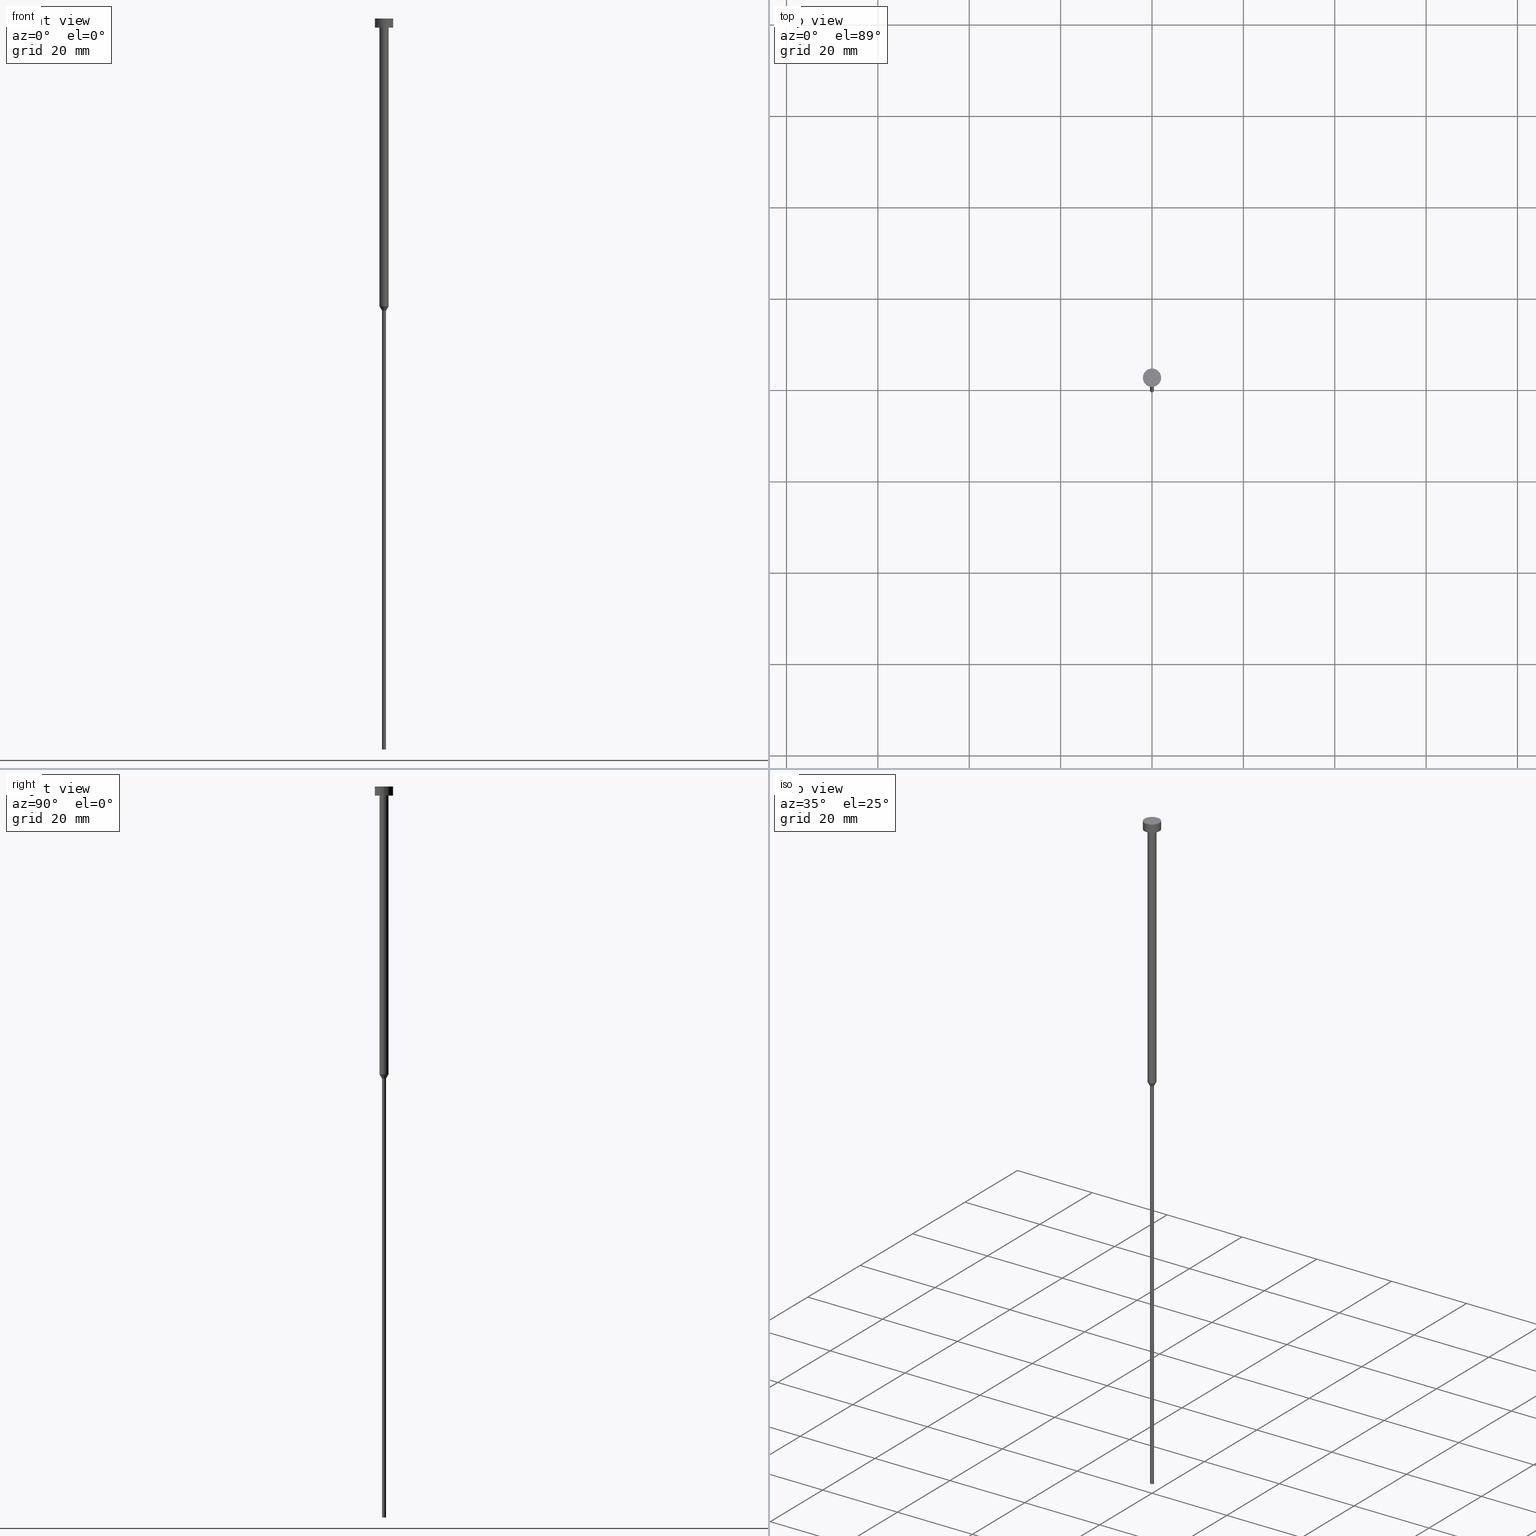
[diagram: canonical four-view strip — front | top / right | iso, engineering-drawing reading convention]
A machine part, canonical four-view strip (front | top / right | iso — engineering-drawing reading convention). The complete STEP part file that produces these views, byte-faithful:
ISO-10303-21;
HEADER;
FILE_DESCRIPTION (( 'STEP AP203' ),
    '1' );
FILE_NAME ('543d.STEP',
    '2023-02-13T11:51:49',
    ( '' ),
    ( '' ),
    'SwSTEP 2.0',
    'SolidWorks 2019',
    '' );
FILE_SCHEMA (( 'CONFIG_CONTROL_DESIGN' ));
ENDSEC;

DATA;
#1 = CARTESIAN_POINT ( 'NONE',  ( 0.000000000000000000, 0.000000000000000000, 0.000000000000000000 ) ) ;
#2 = VECTOR ( 'NONE', #269, 1000.000000000000000 ) ;
#3 = FACE_OUTER_BOUND ( 'NONE', #339, .T. ) ;
#4 = CC_DESIGN_PERSON_AND_ORGANIZATION_ASSIGNMENT ( #129, #12, ( #82 ) ) ;
#5 = AXIS2_PLACEMENT_3D ( 'NONE', #11, #278, #249 ) ;
#6 = ADVANCED_FACE ( 'NONE', ( #320 ), #327, .T. ) ;
#7 = DIRECTION ( 'NONE',  ( 1.000000000000000000, 0.000000000000000000, 0.000000000000000000 ) ) ;
#8 = FACE_BOUND ( 'NONE', #78, .T. ) ;
#9 = DIRECTION ( 'NONE',  ( -0.000000000000000000, -0.000000000000000000, 1.000000000000000000 ) ) ;
#10 = AXIS2_PLACEMENT_3D ( 'NONE', #222, #309, #300 ) ;
#11 = CARTESIAN_POINT ( 'NONE',  ( 0.000000000000000000, 0.000000000000000000, -2.000000000000000444 ) ) ;
#12 = PERSON_AND_ORGANIZATION_ROLE ( 'creator' ) ;
#13 = DATE_AND_TIME ( #201, #119 ) ;
#14 = ORIENTED_EDGE ( 'NONE', *, *, #283, .F. ) ;
#15 = EDGE_CURVE ( 'NONE', #100, #318, #95, .T. ) ;
#16 = LOCAL_TIME ( 12, 51, 49.00000000000000000, #208 ) ;
#17 = EDGE_LOOP ( 'NONE', ( #156, #45, #97, #330 ) ) ;
#18 = APPROVAL_DATE_TIME ( #261, #353 ) ;
#19 = VERTEX_POINT ( 'NONE', #296 ) ;
#20 = PERSON_AND_ORGANIZATION_ROLE ( 'design_owner' ) ;
#21 = ORIENTED_EDGE ( 'NONE', *, *, #263, .F. ) ;
#22 = MANIFOLD_SOLID_BREP ( 'Rotovat1', #200 ) ;
#23 = VERTEX_POINT ( 'NONE', #106 ) ;
#24 = DIRECTION ( 'NONE',  ( -0.000000000000000000, -0.000000000000000000, 1.000000000000000000 ) ) ;
#25 = CARTESIAN_POINT ( 'NONE',  ( 0.000000000000000000, 0.000000000000000000, -160.0000000000000000 ) ) ;
#26 = AXIS2_PLACEMENT_3D ( 'NONE', #160, #110, #324 ) ;
#27 = CARTESIAN_POINT ( 'NONE',  ( 0.000000000000000000, 0.000000000000000000, -160.0000000000000000 ) ) ;
#28 = CARTESIAN_POINT ( 'NONE',  ( 0.000000000000000000, 0.000000000000000000, -2.000000000000000444 ) ) ;
#29 = CC_DESIGN_DATE_AND_TIME_ASSIGNMENT ( #13, #79, ( #151 ) ) ;
#30 = CARTESIAN_POINT ( 'NONE',  ( -2.000000000000000000, 2.449293598294706414E-16, -2.449293598294705921E-16 ) ) ;
#31 = LINE ( 'NONE', #63, #113 ) ;
#32 = AXIS2_PLACEMENT_3D ( 'NONE', #292, #60, #266 ) ;
#33 = AXIS2_PLACEMENT_3D ( 'NONE', #1, #112, #219 ) ;
#34 = PRODUCT ( '543d', '543d', '', ( #314 ) ) ;
#35 = ORIENTED_EDGE ( 'NONE', *, *, #326, .F. ) ;
#36 = CARTESIAN_POINT ( 'NONE',  ( -2.000000000000000000, 2.449293598294706414E-16, 0.000000000000000000 ) ) ;
#37 = CARTESIAN_POINT ( 'NONE',  ( 1.000000000000003553, 0.000000000000000000, -2.000000000000000444 ) ) ;
#38 = DIRECTION ( 'NONE',  ( 1.000000000000000000, 0.000000000000000000, 0.000000000000000000 ) ) ;
#39 = AXIS2_PLACEMENT_3D ( 'NONE', #251, #9, #38 ) ;
#40 = EDGE_CURVE ( 'NONE', #177, #49, #57, .T. ) ;
#41 = ADVANCED_FACE ( 'NONE', ( #352 ), #328, .T. ) ;
#42 = DIRECTION ( 'NONE',  ( 0.000000000000000000, 0.000000000000000000, 1.000000000000000000 ) ) ;
#43 = SECURITY_CLASSIFICATION_LEVEL ( 'unclassified' ) ;
#44 = ORIENTED_EDGE ( 'NONE', *, *, #302, .F. ) ;
#45 = ORIENTED_EDGE ( 'NONE', *, *, #173, .T. ) ;
#46 = APPROVAL_ROLE ( '' ) ;
#47 = EDGE_LOOP ( 'NONE', ( #183, #134, #132, #233 ) ) ;
#48 = DATE_AND_TIME ( #77, #280 ) ;
#49 = VERTEX_POINT ( 'NONE', #241 ) ;
#50 = ORIENTED_EDGE ( 'NONE', *, *, #103, .F. ) ;
#51 = VECTOR ( 'NONE', #163, 1000.000000000000000 ) ;
#52 = CONICAL_SURFACE ( 'NONE', #39, 1.000000000000003109, 0.5235987755983005920 ) ;
#53 = DIRECTION ( 'NONE',  ( -0.000000000000000000, -0.000000000000000000, 1.000000000000000000 ) ) ;
#54 = FACE_OUTER_BOUND ( 'NONE', #311, .T. ) ;
#55 = PRODUCT_DEFINITION ( 'NEZN�M�', '', #82, #306 ) ;
#56 = FACE_OUTER_BOUND ( 'NONE', #125, .T. ) ;
#57 = CIRCLE ( 'NONE', #108, 0.4500000000000000111 ) ;
#58 = LOCAL_TIME ( 12, 51, 49.00000000000000000, #255 ) ;
#59 = DIRECTION ( 'NONE',  ( -0.000000000000000000, -0.000000000000000000, 1.000000000000000000 ) ) ;
#60 = DIRECTION ( 'NONE',  ( -0.000000000000000000, -0.000000000000000000, 1.000000000000000000 ) ) ;
#61 = DIRECTION ( 'NONE',  ( 0.000000000000000000, -0.000000000000000000, 1.000000000000000000 ) ) ;
#62 = AXIS2_PLACEMENT_3D ( 'NONE', #25, #239, #107 ) ;
#63 = CARTESIAN_POINT ( 'NONE',  ( 0.4500000000000000111, 0.000000000000000000, 0.000000000000000000 ) ) ;
#64 = DIRECTION ( 'NONE',  ( -1.000000000000000000, 0.000000000000000000, -0.000000000000000000 ) ) ;
#65 = DIRECTION ( 'NONE',  ( 0.000000000000000000, 0.000000000000000000, -1.000000000000000000 ) ) ;
#66 = EDGE_CURVE ( 'NONE', #49, #177, #252, .T. ) ;
#67 = DIRECTION ( 'NONE',  ( 0.000000000000000000, 0.000000000000000000, -1.000000000000000000 ) ) ;
#68 = EDGE_CURVE ( 'NONE', #205, #318, #101, .T. ) ;
#69 = APPROVAL_STATUS ( 'not_yet_approved' ) ;
#70 = ORIENTED_EDGE ( 'NONE', *, *, #147, .F. ) ;
#71 = ADVANCED_FACE ( 'NONE', ( #86 ), #272, .T. ) ;
#72 = DATE_AND_TIME ( #181, #58 ) ;
#73 = PERSON ( 'NEUR�EN�', 'NEUR�EN�', 'NEUR�EN�', ('NEUR�EN�'), ('NEUR�EN�'), ('NEUR�EN�') ) ;
#74 = ORIENTED_EDGE ( 'NONE', *, *, #40, .F. ) ;
#75 = CARTESIAN_POINT ( 'NONE',  ( 0.000000000000000000, 0.000000000000000000, 0.000000000000000000 ) ) ;
#76 = ORIENTED_EDGE ( 'NONE', *, *, #68, .F. ) ;
#77 = CALENDAR_DATE ( 2023, 13, 2 ) ;
#78 = EDGE_LOOP ( 'NONE', ( #178, #262 ) ) ;
#79 = DATE_TIME_ROLE ( 'classification_date' ) ;
#80 = EDGE_LOOP ( 'NONE', ( #210, #345 ) ) ;
#81 = DIRECTION ( 'NONE',  ( 1.000000000000000000, 0.000000000000000000, 0.000000000000000000 ) ) ;
#82 = PRODUCT_DEFINITION_FORMATION_WITH_SPECIFIED_SOURCE ( 'LIBOVOLN�', '', #34, .NOT_KNOWN. ) ;
#83 = DIRECTION ( 'NONE',  ( 1.000000000000000000, 0.000000000000000000, 0.000000000000000000 ) ) ;
#84 = DIRECTION ( 'NONE',  ( -0.000000000000000000, -0.000000000000000000, 1.000000000000000000 ) ) ;
#85 = CARTESIAN_POINT ( 'NONE',  ( 0.4500000000000000111, 0.000000000000000000, -63.95262794416288443 ) ) ;
#86 = FACE_OUTER_BOUND ( 'NONE', #17, .T. ) ;
#87 = EDGE_CURVE ( 'NONE', #19, #350, #355, .T. ) ;
#88 =( LENGTH_UNIT ( ) NAMED_UNIT ( * ) SI_UNIT ( .MILLI., .METRE. ) );
#89 = AXIS2_PLACEMENT_3D ( 'NONE', #105, #212, #158 ) ;
#90 = DIRECTION ( 'NONE',  ( -0.000000000000000000, -0.000000000000000000, 1.000000000000000000 ) ) ;
#91 = PLANE ( 'NONE',  #216 ) ;
#92 = CARTESIAN_POINT ( 'NONE',  ( -2.000000000000000000, 2.449293598294706414E-16, -2.000000000000000444 ) ) ;
#93 = AXIS2_PLACEMENT_3D ( 'NONE', #28, #322, #81 ) ;
#94 = DATE_AND_TIME ( #204, #16 ) ;
#95 = LINE ( 'NONE', #188, #2 ) ;
#96 =( NAMED_UNIT ( * ) SI_UNIT ( $, .STERADIAN. ) SOLID_ANGLE_UNIT ( ) );
#97 = ORIENTED_EDGE ( 'NONE', *, *, #337, .F. ) ;
#98 = APPROVAL_ROLE ( '' ) ;
#99 = ORIENTED_EDGE ( 'NONE', *, *, #173, .F. ) ;
#100 = VERTEX_POINT ( 'NONE', #135 ) ;
#101 = CIRCLE ( 'NONE', #295, 2.000000000000000000 ) ;
#102 = CC_DESIGN_SECURITY_CLASSIFICATION ( #151, ( #82 ) ) ;
#103 = EDGE_CURVE ( 'NONE', #19, #130, #145, .T. ) ;
#104 = CALENDAR_DATE ( 2023, 13, 2 ) ;
#105 = CARTESIAN_POINT ( 'NONE',  ( 0.000000000000000000, 0.000000000000000000, -63.00000000000000000 ) ) ;
#106 = CARTESIAN_POINT ( 'NONE',  ( 1.000000000000003109, 0.000000000000000000, -63.00000000000000000 ) ) ;
#107 = DIRECTION ( 'NONE',  ( 1.000000000000000000, 0.000000000000000000, 0.000000000000000000 ) ) ;
#108 = AXIS2_PLACEMENT_3D ( 'NONE', #27, #240, #217 ) ;
#109 = VECTOR ( 'NONE', #84, 1000.000000000000000 ) ;
#110 = DIRECTION ( 'NONE',  ( -0.000000000000000000, -0.000000000000000000, 1.000000000000000000 ) ) ;
#111 = CARTESIAN_POINT ( 'NONE',  ( -1.000000000000003109, 1.224646799147356905E-16, -63.00000000000000000 ) ) ;
#112 = DIRECTION ( 'NONE',  ( -0.000000000000000000, -0.000000000000000000, 1.000000000000000000 ) ) ;
#113 = VECTOR ( 'NONE', #331, 1000.000000000000000 ) ;
#114 = CARTESIAN_POINT ( 'NONE',  ( 0.000000000000000000, 0.000000000000000000, -63.95262794416288443 ) ) ;
#115 = DIRECTION ( 'NONE',  ( -1.000000000000000000, 0.000000000000000000, -0.000000000000000000 ) ) ;
#116 = CARTESIAN_POINT ( 'NONE',  ( 0.000000000000000000, 0.000000000000000000, -1.224646799147352961E-16 ) ) ;
#117 = ADVANCED_BREP_SHAPE_REPRESENTATION ( '543d', ( #22, #120 ), #271 ) ;
#118 = FACE_OUTER_BOUND ( 'NONE', #153, .T. ) ;
#119 = LOCAL_TIME ( 12, 51, 49.00000000000000000, #338 ) ;
#120 = AXIS2_PLACEMENT_3D ( 'NONE', #75, #42, #155 ) ;
#121 = CC_DESIGN_DATE_AND_TIME_ASSIGNMENT ( #48, #206, ( #55 ) ) ;
#122 = FACE_OUTER_BOUND ( 'NONE', #342, .T. ) ;
#123 = APPROVAL_DATE_TIME ( #72, #193 ) ;
#124 = APPROVAL_STATUS ( 'not_yet_approved' ) ;
#125 = EDGE_LOOP ( 'NONE', ( #237, #315, #264, #149 ) ) ;
#126 = AXIS2_PLACEMENT_3D ( 'NONE', #275, #281, #336 ) ;
#127 = PERSON_AND_ORGANIZATION_ROLE ( 'design_supplier' ) ;
#128 = ORIENTED_EDGE ( 'NONE', *, *, #147, .T. ) ;
#129 = PERSON_AND_ORGANIZATION ( #73, #316 ) ;
#130 = VERTEX_POINT ( 'NONE', #85 ) ;
#131 = APPROVAL_ROLE ( '' ) ;
#132 = ORIENTED_EDGE ( 'NONE', *, *, #242, .F. ) ;
#133 = AXIS2_PLACEMENT_3D ( 'NONE', #174, #90, #7 ) ;
#134 = ORIENTED_EDGE ( 'NONE', *, *, #87, .T. ) ;
#135 = CARTESIAN_POINT ( 'NONE',  ( 2.000000000000000000, 0.000000000000000000, -2.000000000000000444 ) ) ;
#136 = EDGE_CURVE ( 'NONE', #100, #346, #245, .T. ) ;
#137 = DIRECTION ( 'NONE',  ( -0.000000000000000000, -0.000000000000000000, 1.000000000000000000 ) ) ;
#138 = CIRCLE ( 'NONE', #332, 1.000000000000003109 ) ;
#139 = CARTESIAN_POINT ( 'NONE',  ( 0.000000000000000000, 0.000000000000000000, 0.000000000000000000 ) ) ;
#140 = EDGE_CURVE ( 'NONE', #23, #312, #192, .T. ) ;
#141 = LINE ( 'NONE', #243, #109 ) ;
#142 = FACE_OUTER_BOUND ( 'NONE', #288, .T. ) ;
#143 = PLANE ( 'NONE',  #169 ) ;
#144 = LINE ( 'NONE', #36, #329 ) ;
#145 = CIRCLE ( 'NONE', #184, 0.4500000000000000111 ) ;
#146 = DIRECTION ( 'NONE',  ( -0.000000000000000000, -0.000000000000000000, 1.000000000000000000 ) ) ;
#147 = EDGE_CURVE ( 'NONE', #350, #23, #246, .T. ) ;
#148 = SHAPE_DEFINITION_REPRESENTATION ( #223, #117 ) ;
#149 = ORIENTED_EDGE ( 'NONE', *, *, #15, .F. ) ;
#150 = EDGE_LOOP ( 'NONE', ( #335, #232, #179, #70 ) ) ;
#151 = SECURITY_CLASSIFICATION ( '', '', #43 ) ;
#152 = APPLICATION_CONTEXT ( 'configuration controlled 3d designs of mechanical parts and assemblies' ) ;
#153 = EDGE_LOOP ( 'NONE', ( #207, #290, #256, #21 ) ) ;
#154 = EDGE_CURVE ( 'NONE', #318, #205, #186, .T. ) ;
#155 = DIRECTION ( 'NONE',  ( 1.000000000000000000, 0.000000000000000000, 0.000000000000000000 ) ) ;
#156 = ORIENTED_EDGE ( 'NONE', *, *, #242, .T. ) ;
#157 = CC_DESIGN_PERSON_AND_ORGANIZATION_ASSIGNMENT ( #211, #127, ( #82 ) ) ;
#158 = DIRECTION ( 'NONE',  ( 1.000000000000000000, 0.000000000000000000, 0.000000000000000000 ) ) ;
#159 = CARTESIAN_POINT ( 'NONE',  ( 0.000000000000000000, 0.000000000000000000, -2.449293598294705921E-16 ) ) ;
#160 = CARTESIAN_POINT ( 'NONE',  ( 0.000000000000000000, 0.000000000000000000, 0.000000000000000000 ) ) ;
#161 = CARTESIAN_POINT ( 'NONE',  ( 0.000000000000000000, 0.000000000000000000, -2.000000000000000444 ) ) ;
#162 = CIRCLE ( 'NONE', #297, 2.000000000000000000 ) ;
#163 = DIRECTION ( 'NONE',  ( -0.000000000000000000, -0.000000000000000000, 1.000000000000000000 ) ) ;
#164 = ADVANCED_FACE ( 'NONE', ( #54 ), #354, .T. ) ;
#165 = APPROVAL ( #349, 'NEUR�EN�' ) ;
#166 = CYLINDRICAL_SURFACE ( 'NONE', #33, 2.000000000000000000 ) ;
#167 = CC_DESIGN_PERSON_AND_ORGANIZATION_ASSIGNMENT ( #319, #310, ( #151 ) ) ;
#168 = DIRECTION ( 'NONE',  ( -0.000000000000000000, -0.000000000000000000, 1.000000000000000000 ) ) ;
#169 = AXIS2_PLACEMENT_3D ( 'NONE', #116, #61, #248 ) ;
#170 = CYLINDRICAL_SURFACE ( 'NONE', #10, 0.4500000000000000111 ) ;
#171 = DIRECTION ( 'NONE',  ( 0.5000000000000014433, 0.000000000000000000, 0.8660254037844379305 ) ) ;
#172 = LINE ( 'NONE', #334, #236 ) ;
#173 = EDGE_CURVE ( 'NONE', #350, #282, #141, .T. ) ;
#174 = CARTESIAN_POINT ( 'NONE',  ( 0.000000000000000000, 0.000000000000000000, 0.000000000000000000 ) ) ;
#175 = CC_DESIGN_APPROVAL ( #193, ( #151 ) ) ;
#176 = PERSON_AND_ORGANIZATION ( #73, #316 ) ;
#177 = VERTEX_POINT ( 'NONE', #190 ) ;
#178 = ORIENTED_EDGE ( 'NONE', *, *, #337, .T. ) ;
#179 = ORIENTED_EDGE ( 'NONE', *, *, #214, .T. ) ;
#180 = CC_DESIGN_PERSON_AND_ORGANIZATION_ASSIGNMENT ( #235, #317, ( #55 ) ) ;
#181 = CALENDAR_DATE ( 2023, 13, 2 ) ;
#182 = ORIENTED_EDGE ( 'NONE', *, *, #198, .T. ) ;
#183 = ORIENTED_EDGE ( 'NONE', *, *, #298, .T. ) ;
#184 = AXIS2_PLACEMENT_3D ( 'NONE', #291, #325, #213 ) ;
#185 = CARTESIAN_POINT ( 'NONE',  ( 1.000000000000003331, 0.000000000000000000, 0.000000000000000000 ) ) ;
#186 = CIRCLE ( 'NONE', #32, 2.000000000000000000 ) ;
#187 = AXIS2_PLACEMENT_3D ( 'NONE', #114, #304, #226 ) ;
#188 = CARTESIAN_POINT ( 'NONE',  ( 2.000000000000000000, 0.000000000000000000, 0.000000000000000000 ) ) ;
#189 = COORDINATED_UNIVERSAL_TIME_OFFSET ( 1, 0, .AHEAD. ) ;
#190 = CARTESIAN_POINT ( 'NONE',  ( 0.4500000000000000111, 0.000000000000000000, -160.0000000000000000 ) ) ;
#191 = DIRECTION ( 'NONE',  ( 1.000000000000000000, 0.000000000000000000, 0.000000000000000000 ) ) ;
#192 = LINE ( 'NONE', #185, #51 ) ;
#193 = APPROVAL ( #124, 'NEUR�EN�' ) ;
#194 = PLANE ( 'NONE',  #209 ) ;
#195 =( NAMED_UNIT ( * ) PLANE_ANGLE_UNIT ( ) SI_UNIT ( $, .RADIAN. ) );
#196 = FACE_OUTER_BOUND ( 'NONE', #80, .T. ) ;
#197 = CYLINDRICAL_SURFACE ( 'NONE', #133, 2.000000000000000000 ) ;
#198 = EDGE_CURVE ( 'NONE', #346, #100, #162, .T. ) ;
#199 = CARTESIAN_POINT ( 'NONE',  ( -1.000000000000003109, 1.224646799147356905E-16, -63.00000000000000000 ) ) ;
#200 = CLOSED_SHELL ( 'NONE', ( #203, #71, #321, #220, #333, #41, #6, #164, #307, #293, #267 ) ) ;
#201 = CALENDAR_DATE ( 2023, 13, 2 ) ;
#202 = EDGE_LOOP ( 'NONE', ( #35, #289, #260, #50 ) ) ;
#203 = ADVANCED_FACE ( 'NONE', ( #56 ), #166, .T. ) ;
#204 = CALENDAR_DATE ( 2023, 13, 2 ) ;
#205 = VERTEX_POINT ( 'NONE', #30 ) ;
#206 = DATE_TIME_ROLE ( 'creation_date' ) ;
#207 = ORIENTED_EDGE ( 'NONE', *, *, #40, .T. ) ;
#208 = COORDINATED_UNIVERSAL_TIME_OFFSET ( 1, 0, .AHEAD. ) ;
#209 = AXIS2_PLACEMENT_3D ( 'NONE', #221, #67, #115 ) ;
#210 = ORIENTED_EDGE ( 'NONE', *, *, #136, .F. ) ;
#211 = PERSON_AND_ORGANIZATION ( #73, #316 ) ;
#212 = DIRECTION ( 'NONE',  ( -0.000000000000000000, -0.000000000000000000, 1.000000000000000000 ) ) ;
#213 = DIRECTION ( 'NONE',  ( 1.000000000000000000, 0.000000000000000000, 0.000000000000000000 ) ) ;
#214 = EDGE_CURVE ( 'NONE', #130, #23, #238, .T. ) ;
#215 = DIRECTION ( 'NONE',  ( 1.000000000000000000, 0.000000000000000000, 0.000000000000000000 ) ) ;
#216 = AXIS2_PLACEMENT_3D ( 'NONE', #308, #65, #64 ) ;
#217 = DIRECTION ( 'NONE',  ( 1.000000000000000000, 0.000000000000000000, 0.000000000000000000 ) ) ;
#218 = DIRECTION ( 'NONE',  ( -0.5000000000000014433, 6.123233995736784525E-17, 0.8660254037844379305 ) ) ;
#219 = DIRECTION ( 'NONE',  ( 1.000000000000000000, 0.000000000000000000, 0.000000000000000000 ) ) ;
#220 = ADVANCED_FACE ( 'NONE', ( #118 ), #170, .T. ) ;
#221 = CARTESIAN_POINT ( 'NONE',  ( 0.000000000000000000, 0.000000000000000000, -160.0000000000000000 ) ) ;
#222 = CARTESIAN_POINT ( 'NONE',  ( 0.000000000000000000, 0.000000000000000000, 0.000000000000000000 ) ) ;
#223 = PRODUCT_DEFINITION_SHAPE ( 'NONE', 'NONE',  #55 ) ;
#224 = DIRECTION ( 'NONE',  ( -0.000000000000000000, -0.000000000000000000, 1.000000000000000000 ) ) ;
#225 = CIRCLE ( 'NONE', #126, 1.000000000000003553 ) ;
#226 = DIRECTION ( 'NONE',  ( 1.000000000000000000, 0.000000000000000000, 0.000000000000000000 ) ) ;
#227 = CARTESIAN_POINT ( 'NONE',  ( 0.000000000000000000, 0.000000000000000000, -63.00000000000000000 ) ) ;
#228 = COORDINATED_UNIVERSAL_TIME_OFFSET ( 1, 0, .AHEAD. ) ;
#229 = PERSON_AND_ORGANIZATION ( #73, #316 ) ;
#230 = APPROVAL_PERSON_ORGANIZATION ( #258, #165, #131 ) ;
#231 = ORIENTED_EDGE ( 'NONE', *, *, #154, .T. ) ;
#232 = ORIENTED_EDGE ( 'NONE', *, *, #103, .T. ) ;
#233 = ORIENTED_EDGE ( 'NONE', *, *, #214, .F. ) ;
#234 = AXIS2_PLACEMENT_3D ( 'NONE', #268, #59, #274 ) ;
#235 = PERSON_AND_ORGANIZATION ( #73, #316 ) ;
#236 = VECTOR ( 'NONE', #146, 1000.000000000000000 ) ;
#237 = ORIENTED_EDGE ( 'NONE', *, *, #136, .T. ) ;
#238 = LINE ( 'NONE', #351, #287 ) ;
#239 = DIRECTION ( 'NONE',  ( -0.000000000000000000, -0.000000000000000000, 1.000000000000000000 ) ) ;
#240 = DIRECTION ( 'NONE',  ( -0.000000000000000000, -0.000000000000000000, 1.000000000000000000 ) ) ;
#241 = CARTESIAN_POINT ( 'NONE',  ( -0.4500000000000000111, 5.510910596163088939E-17, -160.0000000000000000 ) ) ;
#242 = EDGE_CURVE ( 'NONE', #23, #350, #138, .T. ) ;
#243 = CARTESIAN_POINT ( 'NONE',  ( -1.000000000000003331, 1.224646799147357151E-16, 0.000000000000000000 ) ) ;
#244 = FACE_OUTER_BOUND ( 'NONE', #47, .T. ) ;
#245 = CIRCLE ( 'NONE', #93, 2.000000000000000000 ) ;
#246 = CIRCLE ( 'NONE', #340, 1.000000000000003109 ) ;
#247 = APPROVAL_PERSON_ORGANIZATION ( #341, #353, #46 ) ;
#248 = DIRECTION ( 'NONE',  ( 1.000000000000000000, 0.000000000000000000, 0.000000000000000000 ) ) ;
#249 = DIRECTION ( 'NONE',  ( 1.000000000000000000, 0.000000000000000000, 0.000000000000000000 ) ) ;
#250 = ORIENTED_EDGE ( 'NONE', *, *, #15, .T. ) ;
#251 = CARTESIAN_POINT ( 'NONE',  ( 0.000000000000000000, 0.000000000000000000, -63.00000000000000000 ) ) ;
#252 = CIRCLE ( 'NONE', #62, 0.4500000000000000111 ) ;
#253 = CIRCLE ( 'NONE', #5, 1.000000000000003553 ) ;
#254 = CARTESIAN_POINT ( 'NONE',  ( -1.000000000000003553, 1.224646799147357398E-16, -2.000000000000000444 ) ) ;
#255 = COORDINATED_UNIVERSAL_TIME_OFFSET ( 1, 0, .AHEAD. ) ;
#256 = ORIENTED_EDGE ( 'NONE', *, *, #298, .F. ) ;
#257 = VECTOR ( 'NONE', #218, 999.9999999999998863 ) ;
#258 = PERSON_AND_ORGANIZATION ( #73, #316 ) ;
#259 = CC_DESIGN_APPROVAL ( #165, ( #55 ) ) ;
#260 = ORIENTED_EDGE ( 'NONE', *, *, #263, .T. ) ;
#261 = DATE_AND_TIME ( #104, #270 ) ;
#262 = ORIENTED_EDGE ( 'NONE', *, *, #283, .T. ) ;
#263 = EDGE_CURVE ( 'NONE', #177, #130, #31, .T. ) ;
#264 = ORIENTED_EDGE ( 'NONE', *, *, #154, .F. ) ;
#265 = ORIENTED_EDGE ( 'NONE', *, *, #140, .T. ) ;
#266 = DIRECTION ( 'NONE',  ( 1.000000000000000000, 0.000000000000000000, 0.000000000000000000 ) ) ;
#267 = ADVANCED_FACE ( 'NONE', ( #3 ), #143, .T. ) ;
#268 = CARTESIAN_POINT ( 'NONE',  ( 0.000000000000000000, 0.000000000000000000, 0.000000000000000000 ) ) ;
#269 = DIRECTION ( 'NONE',  ( -0.000000000000000000, -0.000000000000000000, 1.000000000000000000 ) ) ;
#270 = LOCAL_TIME ( 12, 51, 49.00000000000000000, #189 ) ;
#271 =( GEOMETRIC_REPRESENTATION_CONTEXT ( 3 ) GLOBAL_UNCERTAINTY_ASSIGNED_CONTEXT ( ( #313 ) ) GLOBAL_UNIT_ASSIGNED_CONTEXT ( ( #88, #195, #96 ) ) REPRESENTATION_CONTEXT ( 'NONE', 'WORKASPACE' ) );
#272 = CYLINDRICAL_SURFACE ( 'NONE', #347, 1.000000000000003331 ) ;
#273 = APPLICATION_CONTEXT ( 'configuration controlled 3d designs of mechanical parts and assemblies' ) ;
#274 = DIRECTION ( 'NONE',  ( 1.000000000000000000, 0.000000000000000000, 0.000000000000000000 ) ) ;
#275 = CARTESIAN_POINT ( 'NONE',  ( 0.000000000000000000, 0.000000000000000000, -2.000000000000000444 ) ) ;
#276 = CIRCLE ( 'NONE', #187, 0.4500000000000000111 ) ;
#277 = DIRECTION ( 'NONE',  ( 1.000000000000000000, 0.000000000000000000, 0.000000000000000000 ) ) ;
#278 = DIRECTION ( 'NONE',  ( -0.000000000000000000, -0.000000000000000000, 1.000000000000000000 ) ) ;
#279 = CARTESIAN_POINT ( 'NONE',  ( 2.000000000000000000, 0.000000000000000000, -2.449293598294705921E-16 ) ) ;
#280 = LOCAL_TIME ( 12, 51, 49.00000000000000000, #228 ) ;
#281 = DIRECTION ( 'NONE',  ( -0.000000000000000000, -0.000000000000000000, 1.000000000000000000 ) ) ;
#282 = VERTEX_POINT ( 'NONE', #254 ) ;
#283 = EDGE_CURVE ( 'NONE', #282, #312, #253, .T. ) ;
#284 = APPLICATION_PROTOCOL_DEFINITION ( 'international standard', 'config_control_design', 1994, #273 ) ;
#285 = ORIENTED_EDGE ( 'NONE', *, *, #68, .T. ) ;
#286 = APPLICATION_PROTOCOL_DEFINITION ( 'international standard', 'config_control_design', 1994, #152 ) ;
#287 = VECTOR ( 'NONE', #171, 999.9999999999998863 ) ;
#288 = EDGE_LOOP ( 'NONE', ( #44, #182, #250, #76 ) ) ;
#289 = ORIENTED_EDGE ( 'NONE', *, *, #66, .T. ) ;
#290 = ORIENTED_EDGE ( 'NONE', *, *, #326, .T. ) ;
#291 = CARTESIAN_POINT ( 'NONE',  ( 0.000000000000000000, 0.000000000000000000, -63.95262794416288443 ) ) ;
#292 = CARTESIAN_POINT ( 'NONE',  ( 0.000000000000000000, 0.000000000000000000, -2.449293598294705921E-16 ) ) ;
#293 = ADVANCED_FACE ( 'NONE', ( #142 ), #197, .T. ) ;
#294 = DIRECTION ( 'NONE',  ( -0.000000000000000000, -0.000000000000000000, 1.000000000000000000 ) ) ;
#295 = AXIS2_PLACEMENT_3D ( 'NONE', #159, #24, #215 ) ;
#296 = CARTESIAN_POINT ( 'NONE',  ( -0.4500000000000000111, 5.510910596163088939E-17, -63.95262794416288443 ) ) ;
#297 = AXIS2_PLACEMENT_3D ( 'NONE', #161, #294, #191 ) ;
#298 = EDGE_CURVE ( 'NONE', #130, #19, #276, .T. ) ;
#299 = CARTESIAN_POINT ( 'NONE',  ( 0.000000000000000000, 0.000000000000000000, -63.00000000000000000 ) ) ;
#300 = DIRECTION ( 'NONE',  ( 1.000000000000000000, 0.000000000000000000, 0.000000000000000000 ) ) ;
#301 = PRODUCT_RELATED_PRODUCT_CATEGORY ( 'detail', '', ( #34 ) ) ;
#302 = EDGE_CURVE ( 'NONE', #346, #205, #144, .T. ) ;
#303 = CC_DESIGN_APPROVAL ( #353, ( #82 ) ) ;
#304 = DIRECTION ( 'NONE',  ( -0.000000000000000000, -0.000000000000000000, 1.000000000000000000 ) ) ;
#305 = ORIENTED_EDGE ( 'NONE', *, *, #66, .F. ) ;
#306 = DESIGN_CONTEXT ( 'detailed design', #152, 'design' ) ;
#307 = ADVANCED_FACE ( 'NONE', ( #8, #196 ), #91, .T. ) ;
#308 = CARTESIAN_POINT ( 'NONE',  ( 0.000000000000000000, -2.000000000000000000, -2.000000000000000444 ) ) ;
#309 = DIRECTION ( 'NONE',  ( -0.000000000000000000, -0.000000000000000000, 1.000000000000000000 ) ) ;
#310 = PERSON_AND_ORGANIZATION_ROLE ( 'classification_officer' ) ;
#311 = EDGE_LOOP ( 'NONE', ( #99, #128, #265, #14 ) ) ;
#312 = VERTEX_POINT ( 'NONE', #37 ) ;
#313 = UNCERTAINTY_MEASURE_WITH_UNIT (LENGTH_MEASURE( 1.000000000000000082E-05 ), #88, 'distance_accuracy_value', 'NONE');
#314 = MECHANICAL_CONTEXT ( 'NONE', #273, 'mechanical' ) ;
#315 = ORIENTED_EDGE ( 'NONE', *, *, #302, .T. ) ;
#316 = ORGANIZATION ( 'NEUR�EN�', 'NEUR�EN�', '' ) ;
#317 = PERSON_AND_ORGANIZATION_ROLE ( 'creator' ) ;
#318 = VERTEX_POINT ( 'NONE', #279 ) ;
#319 = PERSON_AND_ORGANIZATION ( #73, #316 ) ;
#320 = FACE_OUTER_BOUND ( 'NONE', #150, .T. ) ;
#321 = ADVANCED_FACE ( 'NONE', ( #244 ), #52, .T. ) ;
#322 = DIRECTION ( 'NONE',  ( -0.000000000000000000, -0.000000000000000000, 1.000000000000000000 ) ) ;
#323 = DIRECTION ( 'NONE',  ( 1.000000000000000000, 0.000000000000000000, 0.000000000000000000 ) ) ;
#324 = DIRECTION ( 'NONE',  ( 1.000000000000000000, 0.000000000000000000, 0.000000000000000000 ) ) ;
#325 = DIRECTION ( 'NONE',  ( -0.000000000000000000, -0.000000000000000000, 1.000000000000000000 ) ) ;
#326 = EDGE_CURVE ( 'NONE', #49, #19, #172, .T. ) ;
#327 = CONICAL_SURFACE ( 'NONE', #89, 1.000000000000003109, 0.5235987755983005920 ) ;
#328 = CYLINDRICAL_SURFACE ( 'NONE', #234, 0.4500000000000000111 ) ;
#329 = VECTOR ( 'NONE', #224, 1000.000000000000000 ) ;
#330 = ORIENTED_EDGE ( 'NONE', *, *, #140, .F. ) ;
#331 = DIRECTION ( 'NONE',  ( -0.000000000000000000, -0.000000000000000000, 1.000000000000000000 ) ) ;
#332 = AXIS2_PLACEMENT_3D ( 'NONE', #227, #168, #277 ) ;
#333 = ADVANCED_FACE ( 'NONE', ( #122 ), #194, .T. ) ;
#334 = CARTESIAN_POINT ( 'NONE',  ( -0.4500000000000000111, 5.510910596163088939E-17, 0.000000000000000000 ) ) ;
#335 = ORIENTED_EDGE ( 'NONE', *, *, #87, .F. ) ;
#336 = DIRECTION ( 'NONE',  ( 1.000000000000000000, 0.000000000000000000, 0.000000000000000000 ) ) ;
#337 = EDGE_CURVE ( 'NONE', #312, #282, #225, .T. ) ;
#338 = COORDINATED_UNIVERSAL_TIME_OFFSET ( 1, 0, .AHEAD. ) ;
#339 = EDGE_LOOP ( 'NONE', ( #231, #285 ) ) ;
#340 = AXIS2_PLACEMENT_3D ( 'NONE', #299, #137, #83 ) ;
#341 = PERSON_AND_ORGANIZATION ( #73, #316 ) ;
#342 = EDGE_LOOP ( 'NONE', ( #74, #305 ) ) ;
#343 = CC_DESIGN_PERSON_AND_ORGANIZATION_ASSIGNMENT ( #229, #20, ( #34 ) ) ;
#344 = APPROVAL_DATE_TIME ( #94, #165 ) ;
#345 = ORIENTED_EDGE ( 'NONE', *, *, #198, .F. ) ;
#346 = VERTEX_POINT ( 'NONE', #92 ) ;
#347 = AXIS2_PLACEMENT_3D ( 'NONE', #139, #53, #323 ) ;
#348 = APPROVAL_PERSON_ORGANIZATION ( #176, #193, #98 ) ;
#349 = APPROVAL_STATUS ( 'not_yet_approved' ) ;
#350 = VERTEX_POINT ( 'NONE', #199 ) ;
#351 = CARTESIAN_POINT ( 'NONE',  ( 1.000000000000003109, 0.000000000000000000, -63.00000000000000000 ) ) ;
#352 = FACE_OUTER_BOUND ( 'NONE', #202, .T. ) ;
#353 = APPROVAL ( #69, 'NEUR�EN�' ) ;
#354 = CYLINDRICAL_SURFACE ( 'NONE', #26, 1.000000000000003331 ) ;
#355 = LINE ( 'NONE', #111, #257 ) ;
ENDSEC;
END-ISO-10303-21;
